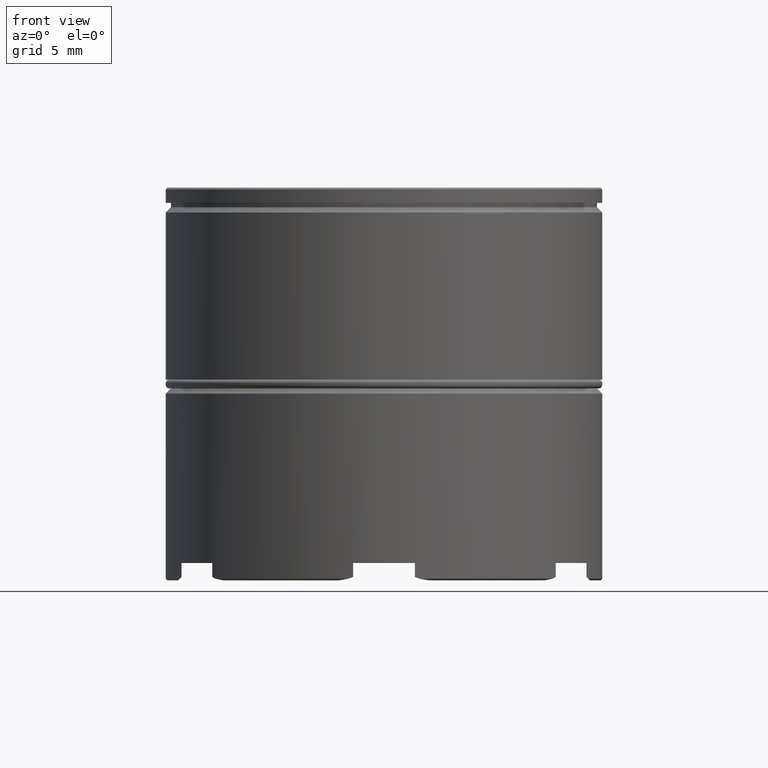
[diagram: clean part render]
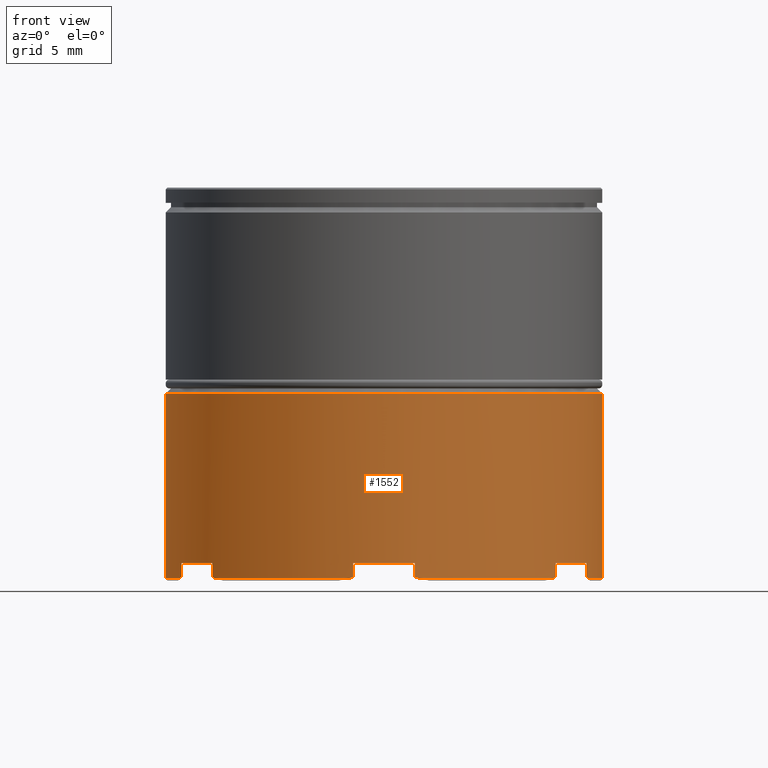
[diagram: same view with one face highlighted and labeled with its STEP entity id]
A machine part, front view. The second image highlights one B-rep face of the part: STEP entity #1552.
In plain terms, the highlighted cylindrical surface (partial cylindrical patch) has radius 12.5 mm, axis along (-0, -0, 1).
Its self-contained STEP definition (entity closure, byte-faithful):
#8 = ORIENTED_EDGE ( 'NONE', *, *, #1605, .T. ) ;
#12 = LINE ( 'NONE', #718, #661 ) ;
#19 = LINE ( 'NONE', #680, #908 ) ;
#23 = DIRECTION ( 'NONE',  ( 1.000000000000000000, 0.000000000000000000, 0.000000000000000000 ) ) ;
#26 = ORIENTED_EDGE ( 'NONE', *, *, #956, .T. ) ;
#28 = VECTOR ( 'NONE', #588, 1000.000000000000000 ) ;
#32 =( BOUNDED_CURVE ( )  B_SPLINE_CURVE ( 3, ( #1448, #1556, #1567, #424 ),
 .UNSPECIFIED., .F., .T. ) 
 B_SPLINE_CURVE_WITH_KNOTS ( ( 4, 4 ),
 ( 3.501299653174751114, 3.523380507813282048 ),
 .UNSPECIFIED. ) 
 CURVE ( )  GEOMETRIC_REPRESENTATION_ITEM ( )  RATIONAL_B_SPLINE_CURVE ( ( 1.000000000000000000, 0.9999593700675737384, 0.9999593700675737384, 1.000000000000000000 ) ) 
 REPRESENTATION_ITEM ( '' )  );
#49 = LINE ( 'NONE', #538, #663 ) ;
#70 = CARTESIAN_POINT ( 'NONE',  ( 11.60000000000000497, -4.657252408878000516, -22.30000000000000426 ) ) ;
#79 = CARTESIAN_POINT ( 'NONE',  ( 0.000000000000000000, 0.000000000000000000, -21.50000000000000000 ) ) ;
#84 = DIRECTION ( 'NONE',  ( -1.000000000000000000, 0.000000000000000000, 0.000000000000000000 ) ) ;
#87 = DIRECTION ( 'NONE',  ( -0.000000000000000000, -0.000000000000000000, 1.000000000000000000 ) ) ;
#94 = ORIENTED_EDGE ( 'NONE', *, *, #1347, .T. ) ;
#95 = AXIS2_PLACEMENT_3D ( 'NONE', #920, #1324, #262 ) ;
#109 = LINE ( 'NONE', #779, #1295 ) ;
#115 = ORIENTED_EDGE ( 'NONE', *, *, #734, .T. ) ;
#117 = CARTESIAN_POINT ( 'NONE',  ( 0.000000000000000000, 0.000000000000000000, -22.39999999999999503 ) ) ;
#119 = VERTEX_POINT ( 'NONE', #464 ) ;
#122 = VERTEX_POINT ( 'NONE', #860 ) ;
#123 = VECTOR ( 'NONE', #1541, 1000.000000000000000 ) ;
#130 = AXIS2_PLACEMENT_3D ( 'NONE', #79, #195, #1593 ) ;
#138 = EDGE_CURVE ( 'NONE', #1339, #119, #12, .T. ) ;
#139 = ORIENTED_EDGE ( 'NONE', *, *, #382, .T. ) ;
#177 = DIRECTION ( 'NONE',  ( -0.000000000000000000, -0.000000000000000000, 1.000000000000000000 ) ) ;
#186 = VERTEX_POINT ( 'NONE', #1510 ) ;
#188 = DIRECTION ( 'NONE',  ( 0.000000000000000000, 0.000000000000000000, -1.000000000000000000 ) ) ;
#192 = VERTEX_POINT ( 'NONE', #869 ) ;
#195 = DIRECTION ( 'NONE',  ( -0.000000000000000000, -0.000000000000000000, 1.000000000000000000 ) ) ;
#197 = CARTESIAN_POINT ( 'NONE',  ( 0.000000000000000000, 0.000000000000000000, -22.39999999999999503 ) ) ;
#203 = EDGE_CURVE ( 'NONE', #1450, #629, #19, .T. ) ;
#212 = DIRECTION ( 'NONE',  ( -0.000000000000000000, -0.000000000000000000, 1.000000000000000000 ) ) ;
#215 = CARTESIAN_POINT ( 'NONE',  ( -11.69999999999999574, -4.400000000000018119, -22.39999999999999503 ) ) ;
#218 = CARTESIAN_POINT ( 'NONE',  ( -9.833298897924624526, -7.717268479460486219, -21.50000000000000000 ) ) ;
#248 = CARTESIAN_POINT ( 'NONE',  ( -9.833298897924617421, -7.717268479460496877, -22.29999999999999716 ) ) ;
#258 = CARTESIAN_POINT ( 'NONE',  ( -11.60000000000000497, -4.657252408878002292, 0.000000000000000000 ) ) ;
#262 = DIRECTION ( 'NONE',  ( -1.000000000000000000, 0.000000000000000000, 0.000000000000000000 ) ) ;
#267 = CARTESIAN_POINT ( 'NONE',  ( -1.948715686431031102, -12.34750874357364836, -22.36761408860076727 ) ) ;
#268 = EDGE_CURVE ( 'NONE', #1275, #387, #32, .T. ) ;
#271 = CARTESIAN_POINT ( 'NONE',  ( 2.039488223348465024, -12.33249722427793493, -22.39999999999999503 ) ) ;
#275 = EDGE_CURVE ( 'NONE', #1023, #1102, #438, .T. ) ;
#295 = CARTESIAN_POINT ( 'NONE',  ( 1.948715686431013339, -12.34750874357364836, -22.36761408860076372 ) ) ;
#312 = ORIENTED_EDGE ( 'NONE', *, *, #1535, .F. ) ;
#318 = ORIENTED_EDGE ( 'NONE', *, *, #268, .T. ) ;
#329 = CARTESIAN_POINT ( 'NONE',  ( -1.766701102075393104, -12.37452088833849118, -22.29999999999999716 ) ) ;
#335 = CIRCLE ( 'NONE', #130, 12.50000000000000000 ) ;
#336 = VECTOR ( 'NONE', #503, 1000.000000000000000 ) ;
#343 = EDGE_CURVE ( 'NONE', #1102, #1117, #830, .T. ) ;
#345 = CARTESIAN_POINT ( 'NONE',  ( 11.69999999999999929, -4.400000000000012790, -22.39999999999999503 ) ) ;
#379 = VECTOR ( 'NONE', #188, 1000.000000000000000 ) ;
#382 = EDGE_CURVE ( 'NONE', #981, #594, #1042, .T. ) ;
#387 = VERTEX_POINT ( 'NONE', #1615 ) ;
#406 = CARTESIAN_POINT ( 'NONE',  ( 2.039488223348465024, -12.33249722427793493, -22.39999999999999503 ) ) ;
#423 = VERTEX_POINT ( 'NONE', #329 ) ;
#424 = CARTESIAN_POINT ( 'NONE',  ( -11.60000000000000497, -4.657252408878002292, -22.30000000000000426 ) ) ;
#438 =( BOUNDED_CURVE ( )  B_SPLINE_CURVE ( 3, ( #1182, #930, #295, #406 ),
 .UNSPECIFIED., .F., .T. ) 
 B_SPLINE_CURVE_WITH_KNOTS ( ( 4, 4 ),
 ( 2.759804799366304628, 2.781885654004836450 ),
 .UNSPECIFIED. ) 
 CURVE ( )  GEOMETRIC_REPRESENTATION_ITEM ( )  RATIONAL_B_SPLINE_CURVE ( ( 1.000000000000000000, 0.9999593700675737384, 0.9999593700675737384, 1.000000000000000000 ) ) 
 REPRESENTATION_ITEM ( '' )  );
#446 = ORIENTED_EDGE ( 'NONE', *, *, #555, .F. ) ;
#450 = CARTESIAN_POINT ( 'NONE',  ( 1.766701102075388885, -12.37452088833849118, -22.29999999999999716 ) ) ;
#454 = CARTESIAN_POINT ( 'NONE',  ( -9.660511776651530269, -7.932497224277932801, -22.39999999999999503 ) ) ;
#455 = CIRCLE ( 'NONE', #616, 12.50000000000000000 ) ;
#464 = CARTESIAN_POINT ( 'NONE',  ( 12.50000000000000000, 0.000000000000000000, -11.80000000000000959 ) ) ;
#468 = LINE ( 'NONE', #1500, #336 ) ;
#489 = VERTEX_POINT ( 'NONE', #677 ) ;
#492 = DIRECTION ( 'NONE',  ( 0.000000000000000000, 0.000000000000000000, -1.000000000000000000 ) ) ;
#493 = ORIENTED_EDGE ( 'NONE', *, *, #854, .T. ) ;
#503 = DIRECTION ( 'NONE',  ( -0.000000000000000000, -0.000000000000000000, 1.000000000000000000 ) ) ;
#506 = FACE_OUTER_BOUND ( 'NONE', #1357, .T. ) ;
#508 = CARTESIAN_POINT ( 'NONE',  ( 9.660511776651530269, -7.932497224277932801, -22.39999999999999503 ) ) ;
#519 = VERTEX_POINT ( 'NONE', #70 ) ;
#528 = DIRECTION ( 'NONE',  ( -0.000000000000000000, -0.000000000000000000, 1.000000000000000000 ) ) ;
#538 = CARTESIAN_POINT ( 'NONE',  ( -12.50000000000000000, 1.530808498934191521E-15, 0.000000000000000000 ) ) ;
#549 =( BOUNDED_CURVE ( )  B_SPLINE_CURVE ( 3, ( #1538, #267, #1520, #1410 ),
 .UNSPECIFIED., .F., .T. ) 
 B_SPLINE_CURVE_WITH_KNOTS ( ( 4, 4 ),
 ( 3.501299653174748894, 3.523380507813281604 ),
 .UNSPECIFIED. ) 
 CURVE ( )  GEOMETRIC_REPRESENTATION_ITEM ( )  RATIONAL_B_SPLINE_CURVE ( ( 1.000000000000000000, 0.9999593700675737384, 0.9999593700675737384, 1.000000000000000000 ) ) 
 REPRESENTATION_ITEM ( '' )  );
#555 = EDGE_CURVE ( 'NONE', #489, #1195, #49, .T. ) ;
#578 = DIRECTION ( 'NONE',  ( -1.000000000000000000, 8.881784197001252323E-16, 0.000000000000000000 ) ) ;
#587 = CARTESIAN_POINT ( 'NONE',  ( 0.000000000000000000, 0.000000000000000000, -22.39999999999999503 ) ) ;
#588 = DIRECTION ( 'NONE',  ( -0.000000000000000000, -0.000000000000000000, 1.000000000000000000 ) ) ;
#593 = CARTESIAN_POINT ( 'NONE',  ( 11.66761408860076799, -4.486117082584336835, -22.36761408860077438 ) ) ;
#594 = VERTEX_POINT ( 'NONE', #1453 ) ;
#596 = EDGE_CURVE ( 'NONE', #519, #186, #1121, .T. ) ;
#603 = DIRECTION ( 'NONE',  ( -1.000000000000000000, 0.000000000000000000, 0.000000000000000000 ) ) ;
#604 = DIRECTION ( 'NONE',  ( -0.000000000000000000, -0.000000000000000000, 1.000000000000000000 ) ) ;
#616 = AXIS2_PLACEMENT_3D ( 'NONE', #197, #87, #1604 ) ;
#629 = VERTEX_POINT ( 'NONE', #218 ) ;
#635 = CIRCLE ( 'NONE', #95, 12.50000000000000000 ) ;
#650 = VERTEX_POINT ( 'NONE', #1363 ) ;
#661 = VECTOR ( 'NONE', #1110, 1000.000000000000000 ) ;
#663 = VECTOR ( 'NONE', #528, 1000.000000000000000 ) ;
#669 = EDGE_CURVE ( 'NONE', #489, #1275, #455, .T. ) ;
#676 = DIRECTION ( 'NONE',  ( -0.000000000000000000, -0.000000000000000000, 1.000000000000000000 ) ) ;
#677 = CARTESIAN_POINT ( 'NONE',  ( -12.50000000000000000, 1.530808498934191521E-15, -22.39999999999999503 ) ) ;
#680 = CARTESIAN_POINT ( 'NONE',  ( -9.833298897924617421, -7.717268479460496877, 0.000000000000000000 ) ) ;
#705 = ORIENTED_EDGE ( 'NONE', *, *, #203, .F. ) ;
#710 = CARTESIAN_POINT ( 'NONE',  ( 11.60000000000000497, -4.657252408878000516, 0.000000000000000000 ) ) ;
#718 = CARTESIAN_POINT ( 'NONE',  ( 12.50000000000000000, 0.000000000000000000, 0.000000000000000000 ) ) ;
#734 = EDGE_CURVE ( 'NONE', #594, #423, #549, .T. ) ;
#748 = DIRECTION ( 'NONE',  ( -0.000000000000000000, -0.000000000000000000, 1.000000000000000000 ) ) ;
#755 = ORIENTED_EDGE ( 'NONE', *, *, #885, .T. ) ;
#779 = CARTESIAN_POINT ( 'NONE',  ( -1.766701102075393104, -12.37452088833849118, 0.000000000000000000 ) ) ;
#781 = CARTESIAN_POINT ( 'NONE',  ( -9.833298897924617421, -7.717268479460496877, -22.29999999999999716 ) ) ;
#784 = ORIENTED_EDGE ( 'NONE', *, *, #1267, .F. ) ;
#795 = CARTESIAN_POINT ( 'NONE',  ( 9.776496449465541971, -7.789645831021948297, -22.33427940088132146 ) ) ;
#822 = VERTEX_POINT ( 'NONE', #1551 ) ;
#830 = CIRCLE ( 'NONE', #858, 12.50000000000000000 ) ;
#836 =( BOUNDED_CURVE ( )  B_SPLINE_CURVE ( 3, ( #508, #960, #795, #1568 ),
 .UNSPECIFIED., .F., .T. ) 
 B_SPLINE_CURVE_WITH_KNOTS ( ( 4, 4 ),
 ( 3.501299653174750226, 3.523380507813281604 ),
 .UNSPECIFIED. ) 
 CURVE ( )  GEOMETRIC_REPRESENTATION_ITEM ( )  RATIONAL_B_SPLINE_CURVE ( ( 1.000000000000000000, 0.9999593700675737384, 0.9999593700675737384, 1.000000000000000000 ) ) 
 REPRESENTATION_ITEM ( '' )  );
#846 = VERTEX_POINT ( 'NONE', #1308 ) ;
#854 = EDGE_CURVE ( 'NONE', #1450, #981, #1231, .T. ) ;
#858 = AXIS2_PLACEMENT_3D ( 'NONE', #587, #212, #578 ) ;
#860 = CARTESIAN_POINT ( 'NONE',  ( 11.60000000000000497, -4.657252408878000516, -21.50000000000000000 ) ) ;
#867 = CARTESIAN_POINT ( 'NONE',  ( 0.000000000000000000, 0.000000000000000000, -21.50000000000000000 ) ) ;
#869 = CARTESIAN_POINT ( 'NONE',  ( -1.766701102075380891, -12.37452088833849118, -21.50000000000000000 ) ) ;
#876 = CARTESIAN_POINT ( 'NONE',  ( 9.833298897924615645, -7.717268479460500430, 0.000000000000000000 ) ) ;
#885 = EDGE_CURVE ( 'NONE', #186, #1339, #991, .T. ) ;
#887 = AXIS2_PLACEMENT_3D ( 'NONE', #117, #604, #84 ) ;
#907 = DIRECTION ( 'NONE',  ( 0.000000000000000000, 0.000000000000000000, -1.000000000000000000 ) ) ;
#908 = VECTOR ( 'NONE', #177, 1000.000000000000000 ) ;
#919 = CARTESIAN_POINT ( 'NONE',  ( -9.660511776651530269, -7.932497224277932801, -22.39999999999999503 ) ) ;
#920 = CARTESIAN_POINT ( 'NONE',  ( 0.000000000000000000, 0.000000000000000000, -21.50000000000000000 ) ) ;
#930 = CARTESIAN_POINT ( 'NONE',  ( 1.857782951415775763, -12.36151720075650395, -22.33427940088132146 ) ) ;
#934 = CARTESIAN_POINT ( 'NONE',  ( 0.000000000000000000, 0.000000000000000000, -22.39999999999999503 ) ) ;
#937 = ORIENTED_EDGE ( 'NONE', *, *, #669, .T. ) ;
#956 = EDGE_CURVE ( 'NONE', #846, #122, #335, .T. ) ;
#960 = CARTESIAN_POINT ( 'NONE',  ( 9.718898402169749318, -7.861391660989317742, -22.36761408860076372 ) ) ;
#981 = VERTEX_POINT ( 'NONE', #454 ) ;
#991 = CIRCLE ( 'NONE', #1124, 12.50000000000000000 ) ;
#1008 = EDGE_CURVE ( 'NONE', #822, #629, #1534, .T. ) ;
#1011 = CARTESIAN_POINT ( 'NONE',  ( 12.50000000000000000, 0.000000000000000000, -22.39999999999999503 ) ) ;
#1014 = ORIENTED_EDGE ( 'NONE', *, *, #596, .T. ) ;
#1016 = ORIENTED_EDGE ( 'NONE', *, *, #1388, .F. ) ;
#1023 = VERTEX_POINT ( 'NONE', #450 ) ;
#1026 = LINE ( 'NONE', #876, #123 ) ;
#1036 = AXIS2_PLACEMENT_3D ( 'NONE', #1284, #748, #23 ) ;
#1038 = CYLINDRICAL_SURFACE ( 'NONE', #1036, 12.50000000000000000 ) ;
#1042 = CIRCLE ( 'NONE', #887, 12.50000000000000000 ) ;
#1088 = ORIENTED_EDGE ( 'NONE', *, *, #138, .T. ) ;
#1102 = VERTEX_POINT ( 'NONE', #271 ) ;
#1110 = DIRECTION ( 'NONE',  ( -0.000000000000000000, -0.000000000000000000, 1.000000000000000000 ) ) ;
#1117 = VERTEX_POINT ( 'NONE', #1288 ) ;
#1121 =( BOUNDED_CURVE ( )  B_SPLINE_CURVE ( 3, ( #1469, #1596, #593, #345 ),
 .UNSPECIFIED., .F., .T. ) 
 B_SPLINE_CURVE_WITH_KNOTS ( ( 4, 4 ),
 ( 2.759804799366304628, 2.781885654004836006 ),
 .UNSPECIFIED. ) 
 CURVE ( )  GEOMETRIC_REPRESENTATION_ITEM ( )  RATIONAL_B_SPLINE_CURVE ( ( 1.000000000000000000, 0.9999593700675737384, 0.9999593700675737384, 1.000000000000000000 ) ) 
 REPRESENTATION_ITEM ( '' )  );
#1124 = AXIS2_PLACEMENT_3D ( 'NONE', #934, #676, #1562 ) ;
#1132 = DIRECTION ( 'NONE',  ( 1.000000000000000000, 0.000000000000000000, 0.000000000000000000 ) ) ;
#1141 = ORIENTED_EDGE ( 'NONE', *, *, #1461, .T. ) ;
#1182 = CARTESIAN_POINT ( 'NONE',  ( 1.766701102075388885, -12.37452088833849118, -22.29999999999999716 ) ) ;
#1195 = VERTEX_POINT ( 'NONE', #1272 ) ;
#1225 = CIRCLE ( 'NONE', #1550, 12.50000000000000000 ) ;
#1231 =( BOUNDED_CURVE ( )  B_SPLINE_CURVE ( 3, ( #781, #1544, #1301, #919 ),
 .UNSPECIFIED., .F., .T. ) 
 B_SPLINE_CURVE_WITH_KNOTS ( ( 4, 4 ),
 ( 2.759804799366304628, 2.781885654004837338 ),
 .UNSPECIFIED. ) 
 CURVE ( )  GEOMETRIC_REPRESENTATION_ITEM ( )  RATIONAL_B_SPLINE_CURVE ( ( 1.000000000000000000, 0.9999593700675737384, 0.9999593700675737384, 1.000000000000000000 ) ) 
 REPRESENTATION_ITEM ( '' )  );
#1250 = CARTESIAN_POINT ( 'NONE',  ( 0.000000000000000000, 0.000000000000000000, -11.80000000000000959 ) ) ;
#1267 = EDGE_CURVE ( 'NONE', #519, #122, #1623, .T. ) ;
#1272 = CARTESIAN_POINT ( 'NONE',  ( -12.50000000000000000, 1.530808498934191521E-15, -11.80000000000000959 ) ) ;
#1275 = VERTEX_POINT ( 'NONE', #215 ) ;
#1284 = CARTESIAN_POINT ( 'NONE',  ( 0.000000000000000000, 0.000000000000000000, 0.000000000000000000 ) ) ;
#1288 = CARTESIAN_POINT ( 'NONE',  ( 9.660511776651530269, -7.932497224277932801, -22.39999999999999503 ) ) ;
#1290 = ORIENTED_EDGE ( 'NONE', *, *, #1008, .T. ) ;
#1295 = VECTOR ( 'NONE', #907, 1000.000000000000000 ) ;
#1296 = ORIENTED_EDGE ( 'NONE', *, *, #1584, .F. ) ;
#1301 = CARTESIAN_POINT ( 'NONE',  ( -9.718898402169747541, -7.861391660989324848, -22.36761408860076727 ) ) ;
#1308 = CARTESIAN_POINT ( 'NONE',  ( 9.833298897924617421, -7.717268479460498654, -21.50000000000000000 ) ) ;
#1315 = CARTESIAN_POINT ( 'NONE',  ( 9.833298897924615645, -7.717268479460500430, -22.29999999999999716 ) ) ;
#1324 = DIRECTION ( 'NONE',  ( -0.000000000000000000, -0.000000000000000000, 1.000000000000000000 ) ) ;
#1326 = ORIENTED_EDGE ( 'NONE', *, *, #1331, .F. ) ;
#1331 = EDGE_CURVE ( 'NONE', #192, #423, #109, .T. ) ;
#1339 = VERTEX_POINT ( 'NONE', #1011 ) ;
#1347 = EDGE_CURVE ( 'NONE', #1117, #1492, #836, .T. ) ;
#1357 = EDGE_LOOP ( 'NONE', ( #446, #937, #318, #1296, #1290, #705, #493, #139, #115, #1326, #8, #1016, #1396, #1463, #94, #312, #26, #784, #1014, #755, #1088, #1141 ) ) ;
#1363 = CARTESIAN_POINT ( 'NONE',  ( 1.766701102075386220, -12.37452088833849295, -21.50000000000000000 ) ) ;
#1373 = DIRECTION ( 'NONE',  ( -0.000000000000000000, -0.000000000000000000, 1.000000000000000000 ) ) ;
#1388 = EDGE_CURVE ( 'NONE', #1023, #650, #468, .T. ) ;
#1396 = ORIENTED_EDGE ( 'NONE', *, *, #275, .T. ) ;
#1401 = LINE ( 'NONE', #258, #379 ) ;
#1410 = CARTESIAN_POINT ( 'NONE',  ( -1.766701102075393104, -12.37452088833849118, -22.29999999999999716 ) ) ;
#1448 = CARTESIAN_POINT ( 'NONE',  ( -11.69999999999999574, -4.400000000000018119, -22.39999999999999503 ) ) ;
#1450 = VERTEX_POINT ( 'NONE', #248 ) ;
#1453 = CARTESIAN_POINT ( 'NONE',  ( -2.039488223348482787, -12.33249722427793138, -22.39999999999999503 ) ) ;
#1461 = EDGE_CURVE ( 'NONE', #119, #1195, #1225, .T. ) ;
#1463 = ORIENTED_EDGE ( 'NONE', *, *, #343, .T. ) ;
#1469 = CARTESIAN_POINT ( 'NONE',  ( 11.60000000000000497, -4.657252408878000516, -22.30000000000000426 ) ) ;
#1482 = AXIS2_PLACEMENT_3D ( 'NONE', #867, #1373, #603 ) ;
#1492 = VERTEX_POINT ( 'NONE', #1315 ) ;
#1500 = CARTESIAN_POINT ( 'NONE',  ( 1.766701102075388885, -12.37452088833849118, 0.000000000000000000 ) ) ;
#1510 = CARTESIAN_POINT ( 'NONE',  ( 11.69999999999999929, -4.400000000000012790, -22.39999999999999503 ) ) ;
#1520 = CARTESIAN_POINT ( 'NONE',  ( -1.857782951415788641, -12.36151720075650395, -22.33427940088132146 ) ) ;
#1534 = CIRCLE ( 'NONE', #1482, 12.50000000000000000 ) ;
#1535 = EDGE_CURVE ( 'NONE', #846, #1492, #1026, .T. ) ;
#1538 = CARTESIAN_POINT ( 'NONE',  ( -2.039488223348482787, -12.33249722427793138, -22.39999999999999503 ) ) ;
#1541 = DIRECTION ( 'NONE',  ( 0.000000000000000000, 0.000000000000000000, -1.000000000000000000 ) ) ;
#1544 = CARTESIAN_POINT ( 'NONE',  ( -9.776496449465541971, -7.789645831021949185, -22.33427940088132146 ) ) ;
#1550 = AXIS2_PLACEMENT_3D ( 'NONE', #1250, #492, #1132 ) ;
#1551 = CARTESIAN_POINT ( 'NONE',  ( -11.60000000000000497, -4.657252408878002292, -21.50000000000000000 ) ) ;
#1552 = ADVANCED_FACE ( 'NONE', ( #506 ), #1038, .T. ) ;
#1556 = CARTESIAN_POINT ( 'NONE',  ( -11.66761408860076443, -4.486117082584343940, -22.36761408860076727 ) ) ;
#1562 = DIRECTION ( 'NONE',  ( -1.000000000000000000, 3.552713678800500929E-15, 0.000000000000000000 ) ) ;
#1567 = CARTESIAN_POINT ( 'NONE',  ( -11.63427940088132040, -4.571871369734563650, -22.33427940088132146 ) ) ;
#1568 = CARTESIAN_POINT ( 'NONE',  ( 9.833298897924615645, -7.717268479460500430, -22.29999999999999716 ) ) ;
#1584 = EDGE_CURVE ( 'NONE', #822, #387, #1401, .T. ) ;
#1593 = DIRECTION ( 'NONE',  ( -1.000000000000000000, 0.000000000000000000, 0.000000000000000000 ) ) ;
#1596 = CARTESIAN_POINT ( 'NONE',  ( 11.63427940088132395, -4.571871369734558321, -22.33427940088132146 ) ) ;
#1604 = DIRECTION ( 'NONE',  ( -1.000000000000000000, 0.000000000000000000, 0.000000000000000000 ) ) ;
#1605 = EDGE_CURVE ( 'NONE', #192, #650, #635, .T. ) ;
#1615 = CARTESIAN_POINT ( 'NONE',  ( -11.60000000000000497, -4.657252408878002292, -22.30000000000000426 ) ) ;
#1623 = LINE ( 'NONE', #710, #28 ) ;